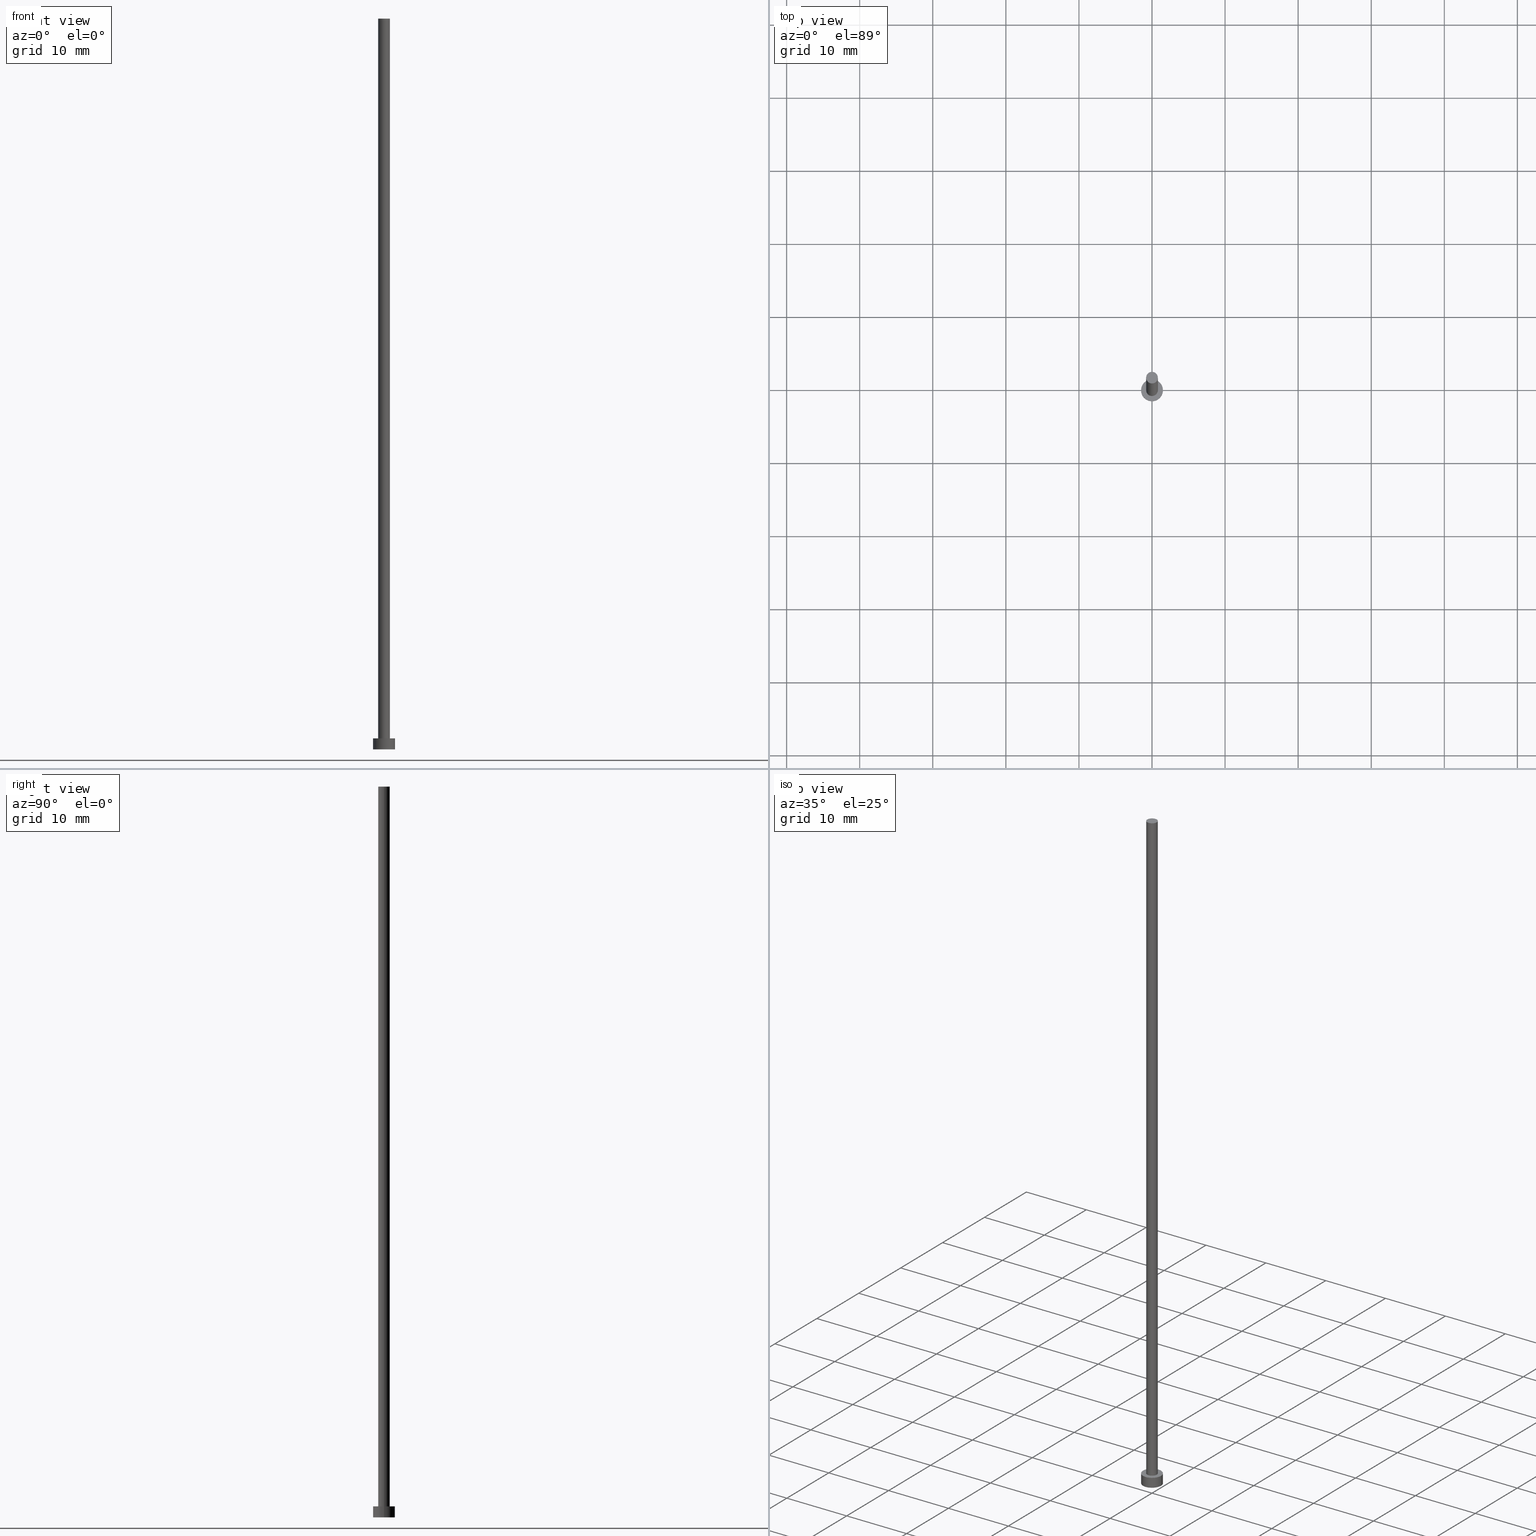
[diagram: canonical four-view strip — front | top / right | iso, engineering-drawing reading convention]
A machine part, canonical four-view strip (front | top / right | iso — engineering-drawing reading convention). The complete STEP part file that produces these views, byte-faithful:
ISO-10303-21;
HEADER;
FILE_DESCRIPTION (( 'STEP AP203' ),
    '1' );
FILE_NAME ('f27c.STEP',
    '2023-02-12T12:56:13',
    ( '' ),
    ( '' ),
    'SwSTEP 2.0',
    'SolidWorks 2019',
    '' );
FILE_SCHEMA (( 'CONFIG_CONTROL_DESIGN' ));
ENDSEC;

DATA;
#1 = CALENDAR_DATE ( 2023, 12, 2 ) ;
#2 = VERTEX_POINT ( 'NONE', #179 ) ;
#3 = CALENDAR_DATE ( 2023, 12, 2 ) ;
#4 = ADVANCED_FACE ( 'NONE', ( #116 ), #202, .T. ) ;
#5 = ORIENTED_EDGE ( 'NONE', *, *, #98, .F. ) ;
#6 = CARTESIAN_POINT ( 'NONE',  ( 0.000000000000000000, 0.000000000000000000, 100.0000000000000000 ) ) ;
#7 = CARTESIAN_POINT ( 'NONE',  ( 0.000000000000000000, 0.000000000000000000, 0.000000000000000000 ) ) ;
#8 = DIRECTION ( 'NONE',  ( 1.000000000000000000, 0.000000000000000000, 0.000000000000000000 ) ) ;
#9 = DIRECTION ( 'NONE',  ( 0.000000000000000000, 0.000000000000000000, 1.000000000000000000 ) ) ;
#10 = FACE_OUTER_BOUND ( 'NONE', #157, .T. ) ;
#11 = DIRECTION ( 'NONE',  ( 1.000000000000000000, 0.000000000000000000, 0.000000000000000000 ) ) ;
#12 = APPROVAL_STATUS ( 'not_yet_approved' ) ;
#13 = COORDINATED_UNIVERSAL_TIME_OFFSET ( 1, 0, .AHEAD. ) ;
#14 = CC_DESIGN_PERSON_AND_ORGANIZATION_ASSIGNMENT ( #110, #70, ( #178 ) ) ;
#15 = VECTOR ( 'NONE', #140, 1000.000000000000000 ) ;
#16 = CALENDAR_DATE ( 2023, 12, 2 ) ;
#17 = PERSON_AND_ORGANIZATION ( #115, #224 ) ;
#18 = DIRECTION ( 'NONE',  ( 0.000000000000000000, 0.000000000000000000, 1.000000000000000000 ) ) ;
#19 = APPROVAL ( #107, 'NEUR�EN�' ) ;
#20 = DIRECTION ( 'NONE',  ( 0.000000000000000000, 0.000000000000000000, 1.000000000000000000 ) ) ;
#21 = VERTEX_POINT ( 'NONE', #155 ) ;
#22 = DIRECTION ( 'NONE',  ( 1.000000000000000000, 0.000000000000000000, -0.000000000000000000 ) ) ;
#23 = ORIENTED_EDGE ( 'NONE', *, *, #47, .F. ) ;
#24 = LOCAL_TIME ( 13, 56, 13.00000000000000000, #13 ) ;
#25 = CARTESIAN_POINT ( 'NONE',  ( 0.000000000000000000, 0.000000000000000000, 1.500000000000000000 ) ) ;
#26 = CARTESIAN_POINT ( 'NONE',  ( 0.000000000000000000, 0.000000000000000000, 100.0000000000000000 ) ) ;
#27 = AXIS2_PLACEMENT_3D ( 'NONE', #125, #188, #163 ) ;
#28 = CC_DESIGN_DATE_AND_TIME_ASSIGNMENT ( #177, #171, ( #204 ) ) ;
#29 = DIRECTION ( 'NONE',  ( 1.000000000000000000, 0.000000000000000000, 0.000000000000000000 ) ) ;
#30 = ADVANCED_FACE ( 'NONE', ( #235 ), #74, .T. ) ;
#31 = DIRECTION ( 'NONE',  ( -1.000000000000000000, 0.000000000000000000, 0.000000000000000000 ) ) ;
#32 = LOCAL_TIME ( 13, 56, 13.00000000000000000, #190 ) ;
#33 = PRODUCT_DEFINITION_SHAPE ( 'NONE', 'NONE',  #118 ) ;
#34 = MECHANICAL_CONTEXT ( 'NONE', #80, 'mechanical' ) ;
#35 = PERSON_AND_ORGANIZATION ( #115, #224 ) ;
#36 = DATE_AND_TIME ( #16, #168 ) ;
#37 = EDGE_LOOP ( 'NONE', ( #219, #203 ) ) ;
#38 = PERSON_AND_ORGANIZATION ( #115, #224 ) ;
#39 = VERTEX_POINT ( 'NONE', #158 ) ;
#40 = ORIENTED_EDGE ( 'NONE', *, *, #67, .F. ) ;
#41 = ORIENTED_EDGE ( 'NONE', *, *, #113, .T. ) ;
#42 = CIRCLE ( 'NONE', #48, 0.8000000000000000444 ) ;
#43 = CYLINDRICAL_SURFACE ( 'NONE', #209, 1.500000000000000222 ) ;
#44 = DIRECTION ( 'NONE',  ( 1.000000000000000000, 0.000000000000000000, 0.000000000000000000 ) ) ;
#45 = DIRECTION ( 'NONE',  ( -0.000000000000000000, -0.000000000000000000, -1.000000000000000000 ) ) ;
#46 = LOCAL_TIME ( 13, 56, 13.00000000000000000, #174 ) ;
#47 = EDGE_CURVE ( 'NONE', #200, #96, #135, .T. ) ;
#48 = AXIS2_PLACEMENT_3D ( 'NONE', #26, #142, #29 ) ;
#49 = CYLINDRICAL_SURFACE ( 'NONE', #134, 1.500000000000000222 ) ;
#50 = UNCERTAINTY_MEASURE_WITH_UNIT (LENGTH_MEASURE( 1.000000000000000082E-05 ), #206, 'distance_accuracy_value', 'NONE');
#51 = APPROVAL_DATE_TIME ( #230, #143 ) ;
#52 = CALENDAR_DATE ( 2023, 12, 2 ) ;
#53 = EDGE_LOOP ( 'NONE', ( #220, #5, #93, #41 ) ) ;
#54 = AXIS2_PLACEMENT_3D ( 'NONE', #161, #229, #8 ) ;
#55 = DATE_AND_TIME ( #1, #32 ) ;
#56 = EDGE_LOOP ( 'NONE', ( #176, #59 ) ) ;
#57 = ORIENTED_EDGE ( 'NONE', *, *, #186, .T. ) ;
#58 = EDGE_LOOP ( 'NONE', ( #222, #180 ) ) ;
#59 = ORIENTED_EDGE ( 'NONE', *, *, #132, .T. ) ;
#60 = CARTESIAN_POINT ( 'NONE',  ( 0.8000000000000000444, 9.797174393178826150E-17, 100.0000000000000000 ) ) ;
#61 = LINE ( 'NONE', #225, #15 ) ;
#62 = EDGE_CURVE ( 'NONE', #200, #21, #156, .T. ) ;
#63 = LOCAL_TIME ( 13, 56, 13.00000000000000000, #251 ) ;
#64 = DIRECTION ( 'NONE',  ( -0.000000000000000000, -0.000000000000000000, -1.000000000000000000 ) ) ;
#65 = FACE_BOUND ( 'NONE', #114, .T. ) ;
#66 = DIRECTION ( 'NONE',  ( -0.000000000000000000, -0.000000000000000000, -1.000000000000000000 ) ) ;
#67 = EDGE_CURVE ( 'NONE', #96, #200, #88, .T. ) ;
#68 = DATE_AND_TIME ( #52, #24 ) ;
#69 = APPROVAL_PERSON_ORGANIZATION ( #17, #19, #147 ) ;
#70 = PERSON_AND_ORGANIZATION_ROLE ( 'design_supplier' ) ;
#71 = APPLICATION_PROTOCOL_DEFINITION ( 'international standard', 'config_control_design', 1994, #80 ) ;
#72 = CC_DESIGN_PERSON_AND_ORGANIZATION_ASSIGNMENT ( #38, #214, ( #118 ) ) ;
#73 = AXIS2_PLACEMENT_3D ( 'NONE', #83, #227, #139 ) ;
#74 = CYLINDRICAL_SURFACE ( 'NONE', #119, 0.8000000000000000444 ) ;
#75 = APPROVAL_ROLE ( '' ) ;
#76 = ORIENTED_EDGE ( 'NONE', *, *, #247, .F. ) ;
#77 = CARTESIAN_POINT ( 'NONE',  ( 0.000000000000000000, 0.000000000000000000, 1.500000000000000000 ) ) ;
#78 = ORIENTED_EDGE ( 'NONE', *, *, #164, .T. ) ;
#79 = CIRCLE ( 'NONE', #181, 1.500000000000000222 ) ;
#80 = APPLICATION_CONTEXT ( 'configuration controlled 3d designs of mechanical parts and assemblies' ) ;
#81 = DIRECTION ( 'NONE',  ( -1.000000000000000000, 0.000000000000000000, 0.000000000000000000 ) ) ;
#82 = DIRECTION ( 'NONE',  ( 0.000000000000000000, 0.000000000000000000, 1.000000000000000000 ) ) ;
#83 = CARTESIAN_POINT ( 'NONE',  ( 0.000000000000000000, 0.000000000000000000, 1.500000000000000000 ) ) ;
#84 = CARTESIAN_POINT ( 'NONE',  ( 0.000000000000000000, 0.000000000000000000, 1.500000000000000000 ) ) ;
#85 = CARTESIAN_POINT ( 'NONE',  ( 0.000000000000000000, 0.000000000000000000, 100.0000000000000000 ) ) ;
#86 = CC_DESIGN_APPROVAL ( #19, ( #178 ) ) ;
#87 = FACE_OUTER_BOUND ( 'NONE', #221, .T. ) ;
#88 = CIRCLE ( 'NONE', #73, 1.500000000000000222 ) ;
#89 = PERSON_AND_ORGANIZATION_ROLE ( 'creator' ) ;
#90 = VECTOR ( 'NONE', #66, 1000.000000000000000 ) ;
#91 = APPLICATION_CONTEXT ( 'configuration controlled 3d designs of mechanical parts and assemblies' ) ;
#92 = PERSON_AND_ORGANIZATION_ROLE ( 'classification_officer' ) ;
#93 = ORIENTED_EDGE ( 'NONE', *, *, #247, .T. ) ;
#94 = APPROVAL_ROLE ( '' ) ;
#95 = DIRECTION ( 'NONE',  ( -0.000000000000000000, -0.000000000000000000, -1.000000000000000000 ) ) ;
#96 = VERTEX_POINT ( 'NONE', #121 ) ;
#97 = FACE_OUTER_BOUND ( 'NONE', #58, .T. ) ;
#98 = EDGE_CURVE ( 'NONE', #39, #2, #42, .T. ) ;
#99 = CARTESIAN_POINT ( 'NONE',  ( 0.000000000000000000, 0.000000000000000000, 0.000000000000000000 ) ) ;
#100 = CARTESIAN_POINT ( 'NONE',  ( 0.000000000000000000, 0.000000000000000000, 1.500000000000000000 ) ) ;
#101 = CARTESIAN_POINT ( 'NONE',  ( -1.500000000000000222, 0.000000000000000000, 1.500000000000000000 ) ) ;
#102 = ADVANCED_FACE ( 'NONE', ( #120 ), #49, .T. ) ;
#103 = ADVANCED_BREP_SHAPE_REPRESENTATION ( 'f27c', ( #249, #159 ), #141 ) ;
#104 = ADVANCED_FACE ( 'NONE', ( #213 ), #146, .F. ) ;
#105 = DIRECTION ( 'NONE',  ( 0.000000000000000000, 0.000000000000000000, 1.000000000000000000 ) ) ;
#106 =( NAMED_UNIT ( * ) SI_UNIT ( $, .STERADIAN. ) SOLID_ANGLE_UNIT ( ) );
#107 = APPROVAL_STATUS ( 'not_yet_approved' ) ;
#108 = AXIS2_PLACEMENT_3D ( 'NONE', #7, #82, #160 ) ;
#109 = APPROVAL ( #232, 'NEUR�EN�' ) ;
#110 = PERSON_AND_ORGANIZATION ( #115, #224 ) ;
#111 = VERTEX_POINT ( 'NONE', #223 ) ;
#112 = CARTESIAN_POINT ( 'NONE',  ( 0.000000000000000000, 0.000000000000000000, 100.0000000000000000 ) ) ;
#113 = EDGE_CURVE ( 'NONE', #137, #111, #239, .T. ) ;
#114 = EDGE_LOOP ( 'NONE', ( #182, #233 ) ) ;
#115 = PERSON ( 'NEUR�EN�', 'NEUR�EN�', 'NEUR�EN�', ('NEUR�EN�'), ('NEUR�EN�'), ('NEUR�EN�') ) ;
#116 = FACE_OUTER_BOUND ( 'NONE', #56, .T. ) ;
#117 = DIRECTION ( 'NONE',  ( -0.000000000000000000, -0.000000000000000000, -1.000000000000000000 ) ) ;
#118 = PRODUCT_DEFINITION ( 'NEZN�M�', '', #178, #250 ) ;
#119 = AXIS2_PLACEMENT_3D ( 'NONE', #6, #95, #81 ) ;
#120 = FACE_OUTER_BOUND ( 'NONE', #136, .T. ) ;
#121 = CARTESIAN_POINT ( 'NONE',  ( -1.500000000000000222, 0.000000000000000000, 1.500000000000000000 ) ) ;
#122 = AXIS2_PLACEMENT_3D ( 'NONE', #246, #189, #248 ) ;
#123 = DIRECTION ( 'NONE',  ( -1.000000000000000000, 0.000000000000000000, 0.000000000000000000 ) ) ;
#124 = EDGE_CURVE ( 'NONE', #173, #21, #79, .T. ) ;
#125 = CARTESIAN_POINT ( 'NONE',  ( 0.000000000000000000, 0.000000000000000000, 0.000000000000000000 ) ) ;
#126 = SHAPE_DEFINITION_REPRESENTATION ( #33, #103 ) ;
#127 = CIRCLE ( 'NONE', #54, 0.8000000000000000444 ) ;
#128 = ADVANCED_FACE ( 'NONE', ( #10 ), #43, .T. ) ;
#129 = AXIS2_PLACEMENT_3D ( 'NONE', #84, #9, #226 ) ;
#130 = ORIENTED_EDGE ( 'NONE', *, *, #183, .T. ) ;
#131 = ORIENTED_EDGE ( 'NONE', *, *, #164, .F. ) ;
#132 = EDGE_CURVE ( 'NONE', #2, #39, #127, .T. ) ;
#133 = CARTESIAN_POINT ( 'NONE',  ( 0.000000000000000000, 0.000000000000000000, 0.000000000000000000 ) ) ;
#134 = AXIS2_PLACEMENT_3D ( 'NONE', #100, #45, #185 ) ;
#135 = CIRCLE ( 'NONE', #162, 1.500000000000000222 ) ;
#136 = EDGE_LOOP ( 'NONE', ( #138, #40, #78, #195 ) ) ;
#137 = VERTEX_POINT ( 'NONE', #205 ) ;
#138 = ORIENTED_EDGE ( 'NONE', *, *, #62, .F. ) ;
#139 = DIRECTION ( 'NONE',  ( 1.000000000000000000, 0.000000000000000000, 0.000000000000000000 ) ) ;
#140 = DIRECTION ( 'NONE',  ( -0.000000000000000000, -0.000000000000000000, -1.000000000000000000 ) ) ;
#141 =( GEOMETRIC_REPRESENTATION_CONTEXT ( 3 ) GLOBAL_UNCERTAINTY_ASSIGNED_CONTEXT ( ( #50 ) ) GLOBAL_UNIT_ASSIGNED_CONTEXT ( ( #206, #234, #106 ) ) REPRESENTATION_CONTEXT ( 'NONE', 'WORKASPACE' ) );
#142 = DIRECTION ( 'NONE',  ( 0.000000000000000000, 0.000000000000000000, 1.000000000000000000 ) ) ;
#143 = APPROVAL ( #12, 'NEUR�EN�' ) ;
#144 = CARTESIAN_POINT ( 'NONE',  ( 1.500000000000000222, 1.836970198721030181E-16, 1.500000000000000000 ) ) ;
#145 = CC_DESIGN_APPROVAL ( #143, ( #204 ) ) ;
#146 = PLANE ( 'NONE',  #27 ) ;
#147 = APPROVAL_ROLE ( '' ) ;
#148 = AXIS2_PLACEMENT_3D ( 'NONE', #85, #64, #31 ) ;
#149 = DATE_TIME_ROLE ( 'creation_date' ) ;
#150 = PERSON_AND_ORGANIZATION ( #115, #224 ) ;
#151 = VECTOR ( 'NONE', #117, 1000.000000000000000 ) ;
#152 = DIRECTION ( 'NONE',  ( 1.000000000000000000, 0.000000000000000000, 0.000000000000000000 ) ) ;
#153 = CIRCLE ( 'NONE', #108, 1.500000000000000222 ) ;
#154 = ADVANCED_FACE ( 'NONE', ( #65, #97 ), #208, .T. ) ;
#155 = CARTESIAN_POINT ( 'NONE',  ( 1.500000000000000222, 1.836970198721030181E-16, 0.000000000000000000 ) ) ;
#156 = LINE ( 'NONE', #237, #151 ) ;
#157 = EDGE_LOOP ( 'NONE', ( #23, #240, #57, #131 ) ) ;
#158 = CARTESIAN_POINT ( 'NONE',  ( -0.8000000000000000444, 0.000000000000000000, 100.0000000000000000 ) ) ;
#159 = AXIS2_PLACEMENT_3D ( 'NONE', #133, #18, #254 ) ;
#160 = DIRECTION ( 'NONE',  ( 1.000000000000000000, 0.000000000000000000, 0.000000000000000000 ) ) ;
#161 = CARTESIAN_POINT ( 'NONE',  ( 0.000000000000000000, 0.000000000000000000, 100.0000000000000000 ) ) ;
#162 = AXIS2_PLACEMENT_3D ( 'NONE', #77, #241, #152 ) ;
#163 = DIRECTION ( 'NONE',  ( 1.000000000000000000, 0.000000000000000000, -0.000000000000000000 ) ) ;
#164 = EDGE_CURVE ( 'NONE', #96, #173, #245, .T. ) ;
#165 = AXIS2_PLACEMENT_3D ( 'NONE', #25, #105, #44 ) ;
#166 = CARTESIAN_POINT ( 'NONE',  ( -1.500000000000000222, 0.000000000000000000, 0.000000000000000000 ) ) ;
#167 = ADVANCED_FACE ( 'NONE', ( #87 ), #184, .T. ) ;
#168 = LOCAL_TIME ( 13, 56, 13.00000000000000000, #196 ) ;
#169 = CARTESIAN_POINT ( 'NONE',  ( 0.000000000000000000, 0.000000000000000000, 1.500000000000000000 ) ) ;
#170 = PERSON_AND_ORGANIZATION_ROLE ( 'design_owner' ) ;
#171 = DATE_TIME_ROLE ( 'classification_date' ) ;
#172 = PERSON_AND_ORGANIZATION ( #115, #224 ) ;
#173 = VERTEX_POINT ( 'NONE', #166 ) ;
#174 = COORDINATED_UNIVERSAL_TIME_OFFSET ( 1, 0, .AHEAD. ) ;
#175 = CC_DESIGN_PERSON_AND_ORGANIZATION_ASSIGNMENT ( #236, #92, ( #204 ) ) ;
#176 = ORIENTED_EDGE ( 'NONE', *, *, #98, .T. ) ;
#177 = DATE_AND_TIME ( #3, #46 ) ;
#178 = PRODUCT_DEFINITION_FORMATION_WITH_SPECIFIED_SOURCE ( 'LIBOVOLN�', '', #210, .NOT_KNOWN. ) ;
#179 = CARTESIAN_POINT ( 'NONE',  ( 0.8000000000000000444, 9.797174393178826150E-17, 100.0000000000000000 ) ) ;
#180 = ORIENTED_EDGE ( 'NONE', *, *, #47, .T. ) ;
#181 = AXIS2_PLACEMENT_3D ( 'NONE', #99, #207, #11 ) ;
#182 = ORIENTED_EDGE ( 'NONE', *, *, #113, .F. ) ;
#183 = EDGE_CURVE ( 'NONE', #111, #137, #252, .T. ) ;
#184 = CYLINDRICAL_SURFACE ( 'NONE', #148, 0.8000000000000000444 ) ;
#185 = DIRECTION ( 'NONE',  ( -1.000000000000000000, 0.000000000000000000, 0.000000000000000000 ) ) ;
#186 = EDGE_CURVE ( 'NONE', #21, #173, #153, .T. ) ;
#187 = DIRECTION ( 'NONE',  ( -0.000000000000000000, -0.000000000000000000, -1.000000000000000000 ) ) ;
#188 = DIRECTION ( 'NONE',  ( 0.000000000000000000, 0.000000000000000000, 1.000000000000000000 ) ) ;
#189 = DIRECTION ( 'NONE',  ( 0.000000000000000000, 0.000000000000000000, 1.000000000000000000 ) ) ;
#190 = COORDINATED_UNIVERSAL_TIME_OFFSET ( 1, 0, .AHEAD. ) ;
#191 = CC_DESIGN_DATE_AND_TIME_ASSIGNMENT ( #68, #149, ( #118 ) ) ;
#192 = AXIS2_PLACEMENT_3D ( 'NONE', #112, #20, #22 ) ;
#193 = APPROVAL_PERSON_ORGANIZATION ( #253, #143, #94 ) ;
#194 = CALENDAR_DATE ( 2023, 12, 2 ) ;
#195 = ORIENTED_EDGE ( 'NONE', *, *, #124, .T. ) ;
#196 = COORDINATED_UNIVERSAL_TIME_OFFSET ( 1, 0, .AHEAD. ) ;
#197 = CLOSED_SHELL ( 'NONE', ( #167, #128, #102, #154, #104, #30, #4 ) ) ;
#198 = ORIENTED_EDGE ( 'NONE', *, *, #201, .T. ) ;
#199 = APPROVAL_PERSON_ORGANIZATION ( #172, #109, #75 ) ;
#200 = VERTEX_POINT ( 'NONE', #144 ) ;
#201 = EDGE_CURVE ( 'NONE', #2, #111, #243, .T. ) ;
#202 = PLANE ( 'NONE',  #192 ) ;
#203 = ORIENTED_EDGE ( 'NONE', *, *, #186, .F. ) ;
#204 = SECURITY_CLASSIFICATION ( '', '', #231 ) ;
#205 = CARTESIAN_POINT ( 'NONE',  ( -0.8000000000000000444, 0.000000000000000000, 1.500000000000000000 ) ) ;
#206 =( LENGTH_UNIT ( ) NAMED_UNIT ( * ) SI_UNIT ( .MILLI., .METRE. ) );
#207 = DIRECTION ( 'NONE',  ( 0.000000000000000000, 0.000000000000000000, 1.000000000000000000 ) ) ;
#208 = PLANE ( 'NONE',  #129 ) ;
#209 = AXIS2_PLACEMENT_3D ( 'NONE', #169, #187, #123 ) ;
#210 = PRODUCT ( 'f27c', 'f27c', '', ( #34 ) ) ;
#211 = CC_DESIGN_SECURITY_CLASSIFICATION ( #204, ( #178 ) ) ;
#212 = CC_DESIGN_PERSON_AND_ORGANIZATION_ASSIGNMENT ( #35, #89, ( #178 ) ) ;
#213 = FACE_OUTER_BOUND ( 'NONE', #37, .T. ) ;
#214 = PERSON_AND_ORGANIZATION_ROLE ( 'creator' ) ;
#215 = APPROVAL_DATE_TIME ( #36, #19 ) ;
#216 = CC_DESIGN_APPROVAL ( #109, ( #118 ) ) ;
#217 = APPLICATION_PROTOCOL_DEFINITION ( 'international standard', 'config_control_design', 1994, #91 ) ;
#218 = APPROVAL_DATE_TIME ( #55, #109 ) ;
#219 = ORIENTED_EDGE ( 'NONE', *, *, #124, .F. ) ;
#220 = ORIENTED_EDGE ( 'NONE', *, *, #201, .F. ) ;
#221 = EDGE_LOOP ( 'NONE', ( #255, #198, #130, #76 ) ) ;
#222 = ORIENTED_EDGE ( 'NONE', *, *, #67, .T. ) ;
#223 = CARTESIAN_POINT ( 'NONE',  ( 0.8000000000000000444, 9.797174393178826150E-17, 1.500000000000000000 ) ) ;
#224 = ORGANIZATION ( 'NEUR�EN�', 'NEUR�EN�', '' ) ;
#225 = CARTESIAN_POINT ( 'NONE',  ( -0.8000000000000000444, 0.000000000000000000, 100.0000000000000000 ) ) ;
#226 = DIRECTION ( 'NONE',  ( 1.000000000000000000, 0.000000000000000000, -0.000000000000000000 ) ) ;
#227 = DIRECTION ( 'NONE',  ( 0.000000000000000000, 0.000000000000000000, 1.000000000000000000 ) ) ;
#228 = VECTOR ( 'NONE', #244, 1000.000000000000000 ) ;
#229 = DIRECTION ( 'NONE',  ( 0.000000000000000000, 0.000000000000000000, 1.000000000000000000 ) ) ;
#230 = DATE_AND_TIME ( #194, #63 ) ;
#231 = SECURITY_CLASSIFICATION_LEVEL ( 'unclassified' ) ;
#232 = APPROVAL_STATUS ( 'not_yet_approved' ) ;
#233 = ORIENTED_EDGE ( 'NONE', *, *, #183, .F. ) ;
#234 =( NAMED_UNIT ( * ) PLANE_ANGLE_UNIT ( ) SI_UNIT ( $, .RADIAN. ) );
#235 = FACE_OUTER_BOUND ( 'NONE', #53, .T. ) ;
#236 = PERSON_AND_ORGANIZATION ( #115, #224 ) ;
#237 = CARTESIAN_POINT ( 'NONE',  ( 1.500000000000000222, 1.836970198721030181E-16, 1.500000000000000000 ) ) ;
#238 = CC_DESIGN_PERSON_AND_ORGANIZATION_ASSIGNMENT ( #150, #170, ( #210 ) ) ;
#239 = CIRCLE ( 'NONE', #122, 0.8000000000000000444 ) ;
#240 = ORIENTED_EDGE ( 'NONE', *, *, #62, .T. ) ;
#241 = DIRECTION ( 'NONE',  ( 0.000000000000000000, 0.000000000000000000, 1.000000000000000000 ) ) ;
#242 = PRODUCT_RELATED_PRODUCT_CATEGORY ( 'detail', '', ( #210 ) ) ;
#243 = LINE ( 'NONE', #60, #228 ) ;
#244 = DIRECTION ( 'NONE',  ( -0.000000000000000000, -0.000000000000000000, -1.000000000000000000 ) ) ;
#245 = LINE ( 'NONE', #101, #90 ) ;
#246 = CARTESIAN_POINT ( 'NONE',  ( 0.000000000000000000, 0.000000000000000000, 1.500000000000000000 ) ) ;
#247 = EDGE_CURVE ( 'NONE', #39, #137, #61, .T. ) ;
#248 = DIRECTION ( 'NONE',  ( 1.000000000000000000, 0.000000000000000000, 0.000000000000000000 ) ) ;
#249 = MANIFOLD_SOLID_BREP ( 'P�idat vysunut�m3', #197 ) ;
#250 = DESIGN_CONTEXT ( 'detailed design', #91, 'design' ) ;
#251 = COORDINATED_UNIVERSAL_TIME_OFFSET ( 1, 0, .AHEAD. ) ;
#252 = CIRCLE ( 'NONE', #165, 0.8000000000000000444 ) ;
#253 = PERSON_AND_ORGANIZATION ( #115, #224 ) ;
#254 = DIRECTION ( 'NONE',  ( 1.000000000000000000, 0.000000000000000000, 0.000000000000000000 ) ) ;
#255 = ORIENTED_EDGE ( 'NONE', *, *, #132, .F. ) ;
ENDSEC;
END-ISO-10303-21;
